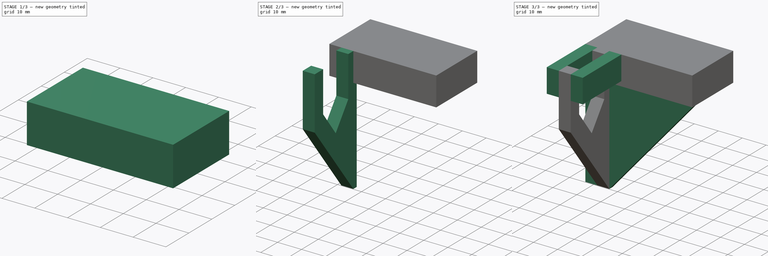
[diagram: build sequence overview — one tinted view per stage of 3, left to right]
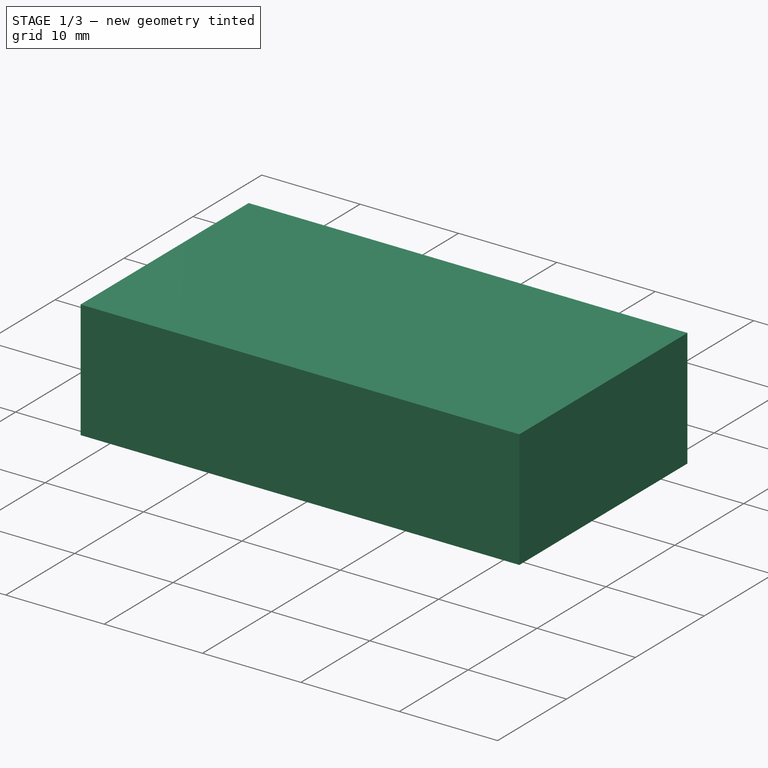
[diagram: stage 1 of 3 — iso view after this stage's code; geometry added in this stage tinted green]
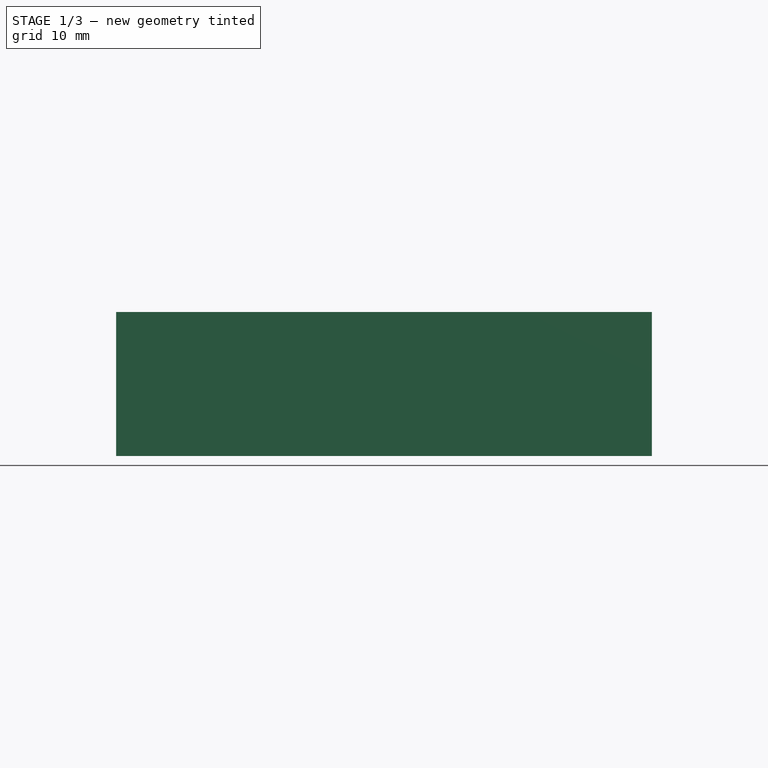
[diagram: stage 1 of 3 — front view after this stage's code; geometry added in this stage tinted green]
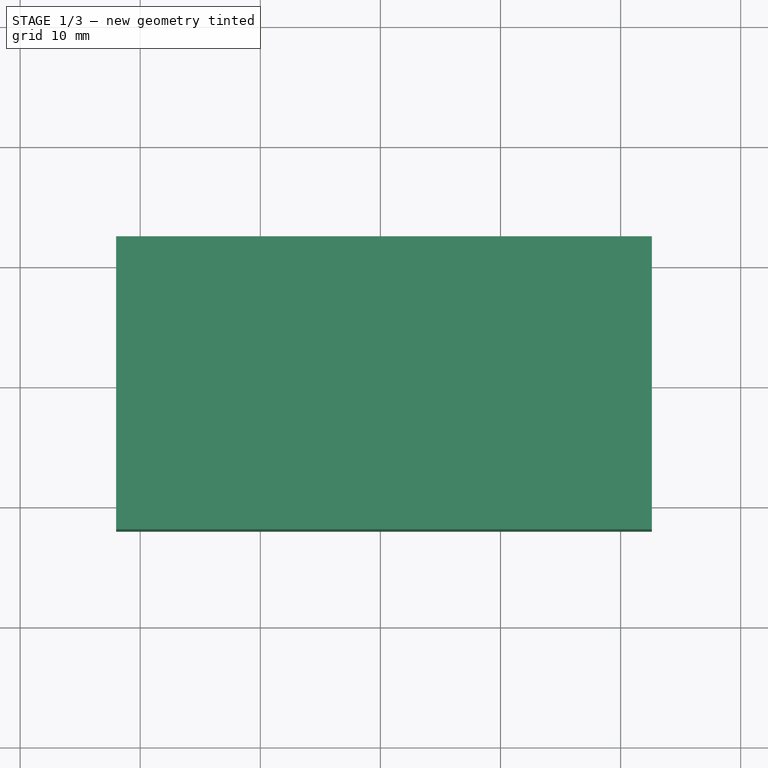
[diagram: stage 1 of 3 — top view after this stage's code; geometry added in this stage tinted green]
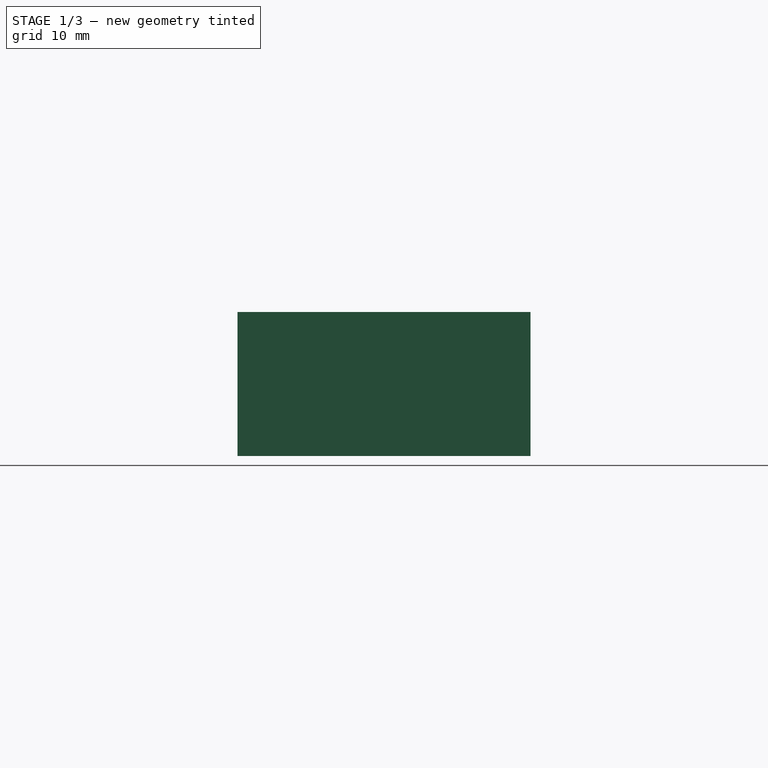
[diagram: stage 1 of 3 — right view after this stage's code; geometry added in this stage tinted green]
FCSTD DOCUMENT  (FreeCAD 1.0R39109 (Git))
Label: Cap_straight_slot
License: All rights reserved
LicenseURL: https://en.wikipedia.org/wiki/All_rights_reserved
objects: Sketcher::SketchObject×4, PartDesign::Pad×4, PartDesign::AdditiveBox×1, PartDesign::Body×1
note: 24 computed .brp shape members not serialized (recipe doc carries the construction recipe); baked Part::Feature solids carry a one-line shape summary decoded from their .brp

FEATURE [Sketcher::SketchObject] Sketch002
  ArcFitTolerance = 0
  AttachmentSupport = -> [XY_Plane]
  FullyConstrained = true
  MakeInternals = false
  MapMode = 5
  sketch-geometry (8):
    g0: LineSegment StartX=0 StartY=20.4 StartZ=0 EndX=40.6 EndY=20.4 EndZ=0
    g1: LineSegment StartX=40.6 StartY=20.4 StartZ=0 EndX=40.6 EndY=0 EndZ=0
    g2: LineSegment StartX=40.6 StartY=0 StartZ=0 EndX=0 EndY=0 EndZ=0
    g3: LineSegment StartX=0 StartY=0 StartZ=0 EndX=0 EndY=20.4 EndZ=0
    g4: LineSegment StartX=-2 StartY=22.4 StartZ=0 EndX=42.6 EndY=22.4 EndZ=0
    g5: LineSegment StartX=42.6 StartY=22.4 StartZ=0 EndX=42.6 EndY=-2 EndZ=0
    g6: LineSegment StartX=42.6 StartY=-2 StartZ=0 EndX=-2 EndY=-2 EndZ=0
    g7: LineSegment StartX=-2 StartY=-2 StartZ=0 EndX=-2 EndY=22.4 EndZ=0
  constraints (24):
    c: Coincident(g0,g1)
    c: Coincident(g1,g2)
    c: Coincident(g2,g3)
    c: Coincident(g3,g0)
    c: Horizontal(g0)
    c: Horizontal(g2)
    c: Vertical(g1)
    c: Vertical(g3)
    c: Coincident(g4,g5)
    c: Coincident(g5,g6)
    c: Coincident(g7,g4)
    c: Horizontal(g4)
    c: Horizontal(g6)
    c: Vertical(g5)
    c: Vertical(g7)
    c: DistanceX(g2) = 0
    c: DistanceY(g2) = 0
    c: DistanceY(g3,g3) = 20.4
    c: DistanceX(g0,g0) = 40.6
    c: DistanceX(g0,g4) = 2
    c: DistanceX(g4,g0) = 2
    c: DistanceY(g0,g4) = 2
    c: DistanceY(g5,g1) = 2
    c: Coincident(g6,g7)
FEATURE [PartDesign::Pad] Pad001
  Direction = (0,0,1)
  Length = 12
  Length2 = 10
  Profile = -> Sketch002
  ReferenceAxis = -> Sketch002 [N_Axis]
  Suppressed = false
  Type = 0
FEATURE [PartDesign::AdditiveBox] Box
  AttacherType = Attacher::AttachEngine3D
  AttachmentOffset = pos=(-2,-2,10) rot=(0,0,1;0rad)
  AttachmentSupport = -> [XY_Plane]
  BaseFeature = -> Pad001
  Height = 2
  Length = 44.2
  MapMode = 5
  Placement = pos=(-2,-2,10) rot=(0,0,1;0rad)
  Suppressed = false
  Width = 24.2
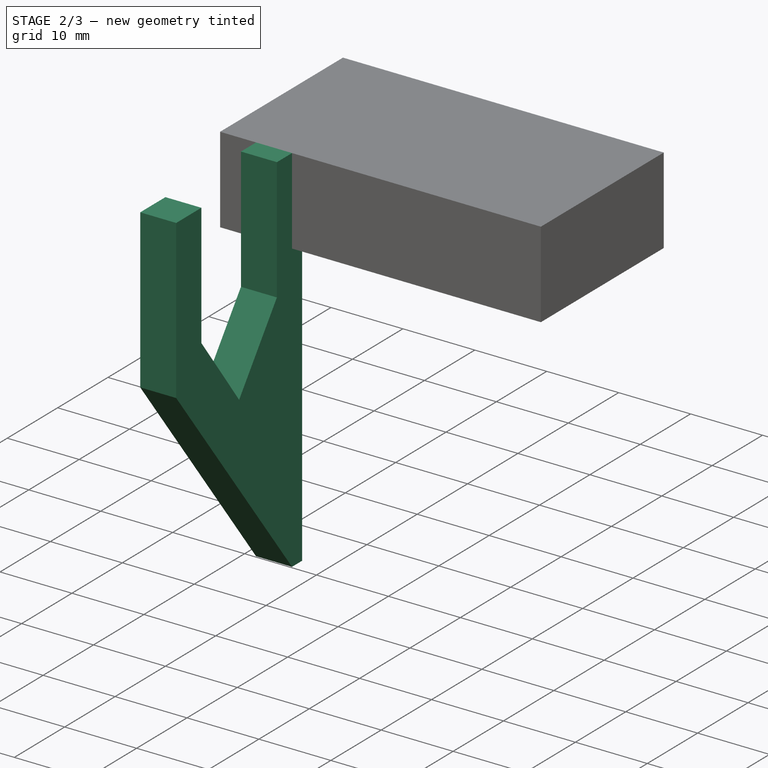
[diagram: stage 2 of 3 — iso view after this stage's code; geometry added in this stage tinted green]
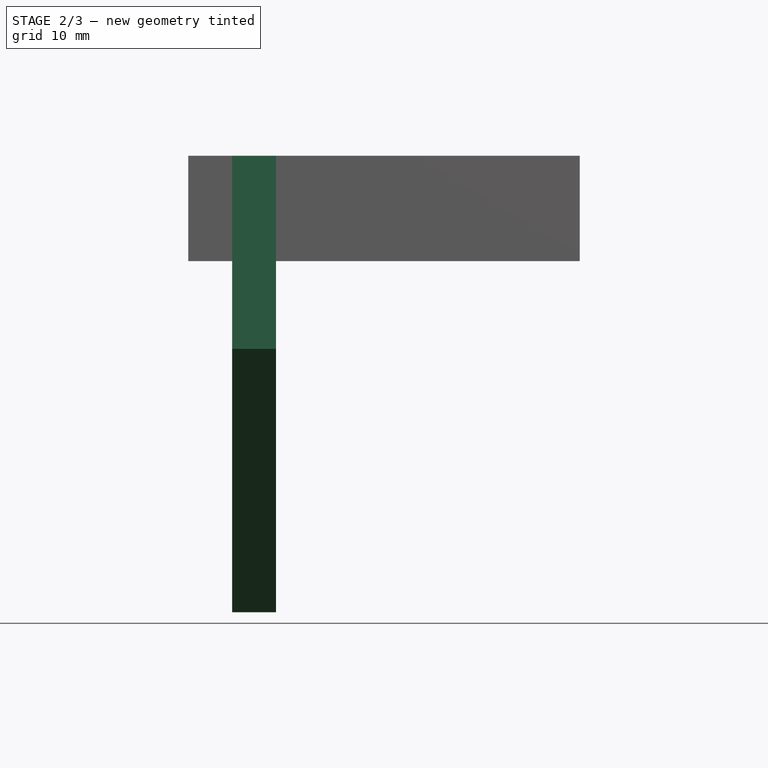
[diagram: stage 2 of 3 — front view after this stage's code; geometry added in this stage tinted green]
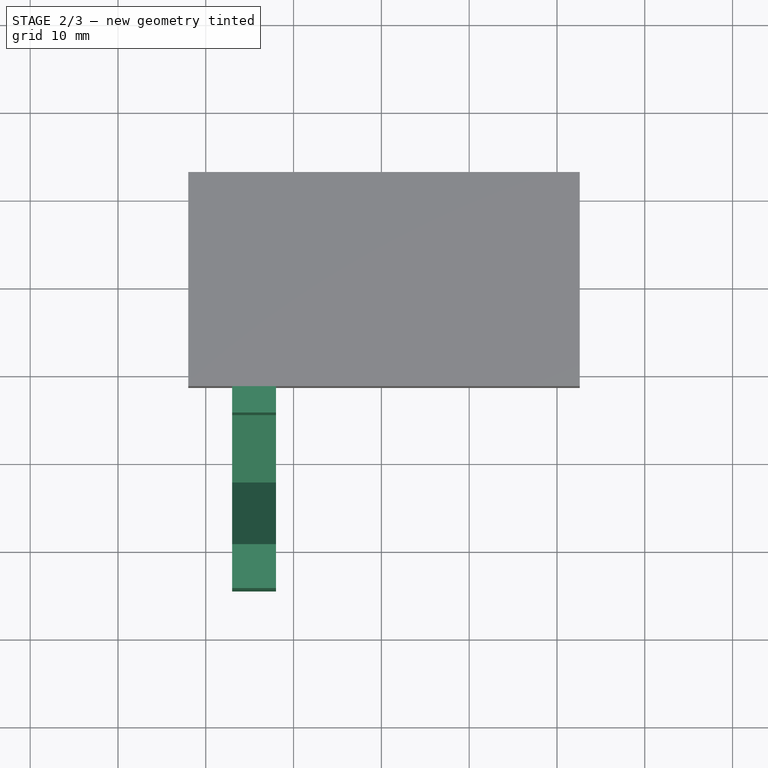
[diagram: stage 2 of 3 — top view after this stage's code; geometry added in this stage tinted green]
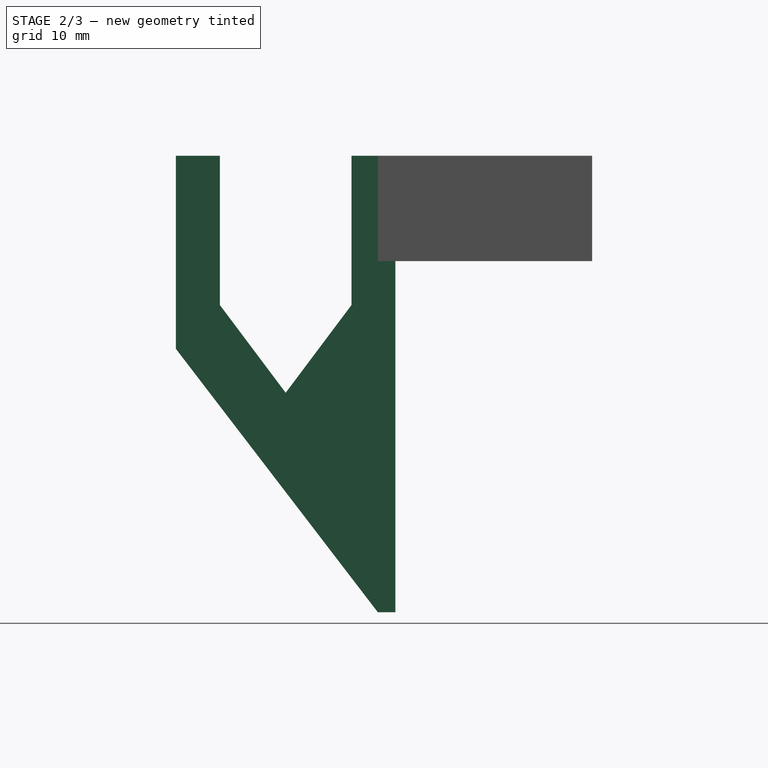
[diagram: stage 2 of 3 — right view after this stage's code; geometry added in this stage tinted green]
FEATURE [Sketcher::SketchObject] Sketch
  ArcFitTolerance = 1e-06
  AttachmentOffset = pos=(0,0,5.5) rot=(0,0,1;0rad)
  AttachmentSupport = -> [YZ_Plane]
  FullyConstrained = true
  MakeInternals = false
  MapMode = 5
  Placement = pos=(5.5,0,0) rot=(0.57735,0.57735,0.57735;2.0944rad)
  sketch-geometry (11):
    g0: LineSegment StartX=-25 StartY=-10 StartZ=0 EndX=-2 EndY=-40 EndZ=0
    g1: LineSegment StartX=-2 StartY=-40 StartZ=0 EndX=0 EndY=-40 EndZ=0
    g2: LineSegment StartX=0 StartY=-40 StartZ=0 EndX=0 EndY=-10 EndZ=0
    g3: LineSegment StartX=-25 StartY=12 StartZ=0 EndX=-25 EndY=-10 EndZ=0
    g4: LineSegment StartX=-20 StartY=-5 StartZ=0 EndX=-20 EndY=12 EndZ=0
    g5: LineSegment StartX=-20 StartY=12 StartZ=0 EndX=-25 EndY=12 EndZ=0
    g6: LineSegment StartX=-20 StartY=-5 StartZ=0 EndX=-12.5 EndY=-15 EndZ=0
    g7: LineSegment StartX=-12.5 StartY=-15 StartZ=0 EndX=-5 EndY=-5 EndZ=0
    g8: LineSegment StartX=-5 StartY=-5 StartZ=0 EndX=-5 EndY=12 EndZ=0
    g9: LineSegment StartX=-5 StartY=12 StartZ=0 EndX=0 EndY=12 EndZ=0
    g10: LineSegment StartX=0 StartY=12 StartZ=0 EndX=0 EndY=-10 EndZ=0
  constraints (33):
    c: Coincident(g0,g1)
    c: Horizontal(g1)
    c: DistanceX(g1,g1) = 2
    c: Coincident(g2,g1)
    c: Vertical(g2)
    c: DistanceY(g2,g2) = 30
    c: DistanceX(g0,g2) = 25
    c: DistanceX(g2) = 0
    c: DistanceY(g2) = -10
    c: Coincident(g4,g5)
    c: Coincident(g5,g3)
    c: Vertical(g3)
    c: Vertical(g4)
    c: Horizontal(g5)
    c: Coincident(g3,g0)
    c: DistanceY(g2,g0) = 0
    c: DistanceX(g5,g5) = 5
    c: Coincident(g4,g6)
    c: Coincident(g6,g7)
    c: Coincident(g7,g8)
    c: Vertical(g8)
    c: Coincident(g8,g9)
    c: Horizontal(g9)
    c: Coincident(g9,g10)
    c: Coincident(g10,g2)
    c: Vertical(g10)
    c: DistanceY(g-1,g9) = 12
    c: DistanceY(g4,g8) = 0
    c: DistanceX(g9,g9) = 5
    c: Equal(g6,g7)
    c: DistanceY(g7,g4) = 0
    c: DistanceY(g7,g-1) = 5
    c: DistanceY(g6,g7) = 10
FEATURE [PartDesign::Pad] Pad
  BaseFeature = -> Box
  Direction = (1,0,0)
  Length = 5
  Length2 = 10
  Midplane = true
  Placement = pos=(-2,-2,10) rot=(0,0,1;0rad)
  Profile = -> Sketch
  ReferenceAxis = -> Sketch [N_Axis]
  Suppressed = false
  Type = 0
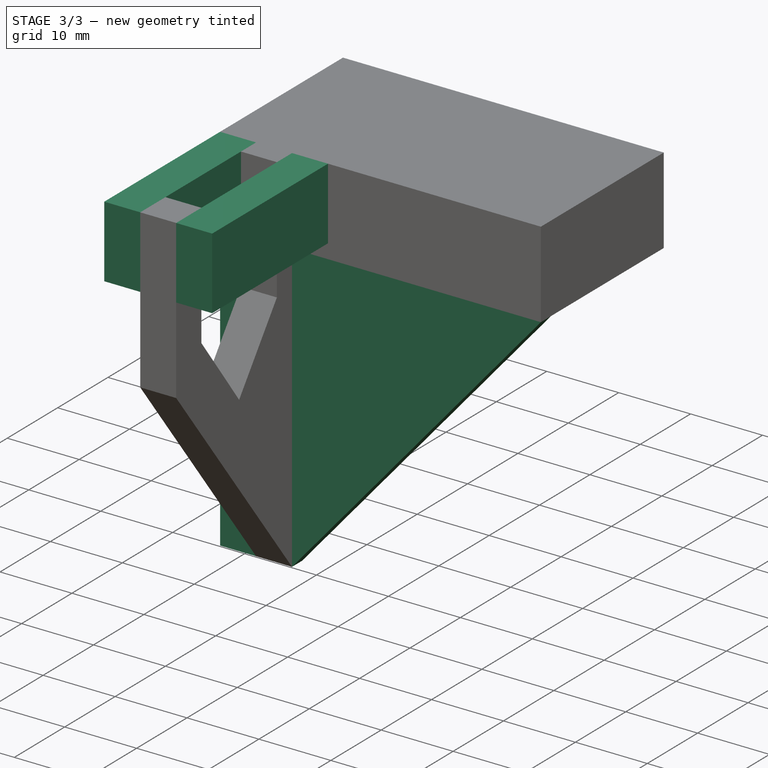
[diagram: stage 3 of 3 — iso view after this stage's code; geometry added in this stage tinted green]
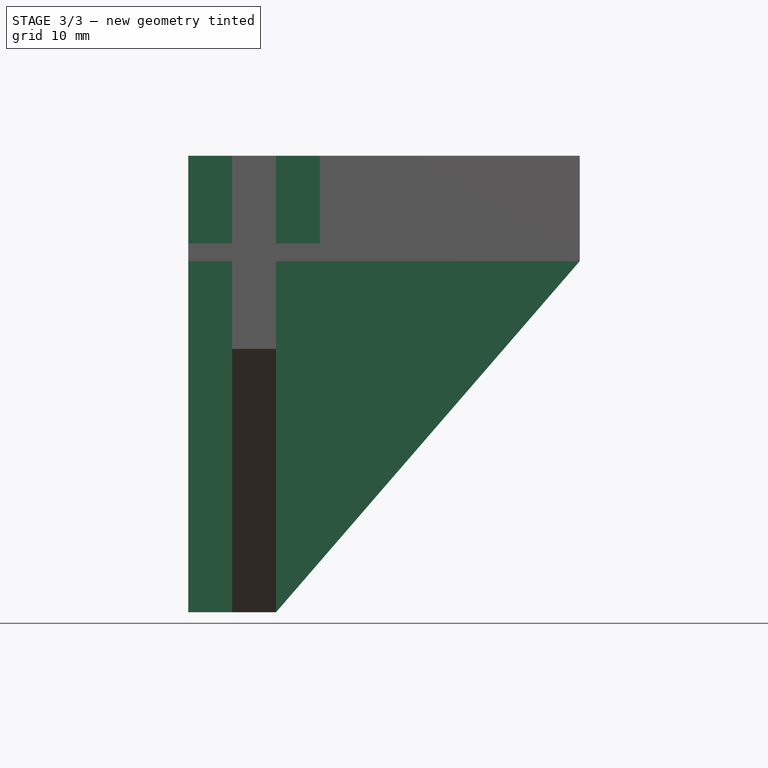
[diagram: stage 3 of 3 — front view after this stage's code; geometry added in this stage tinted green]
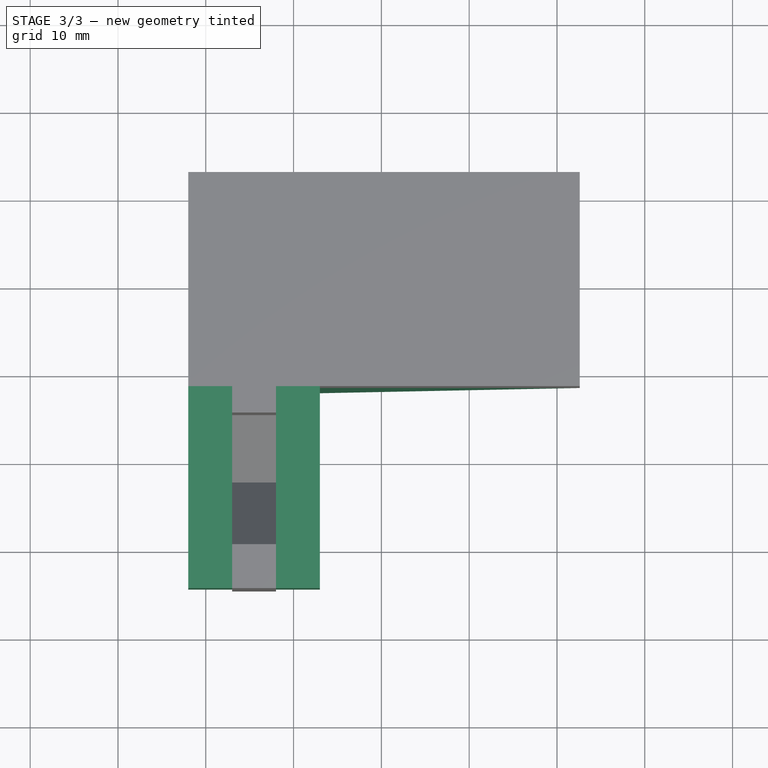
[diagram: stage 3 of 3 — top view after this stage's code; geometry added in this stage tinted green]
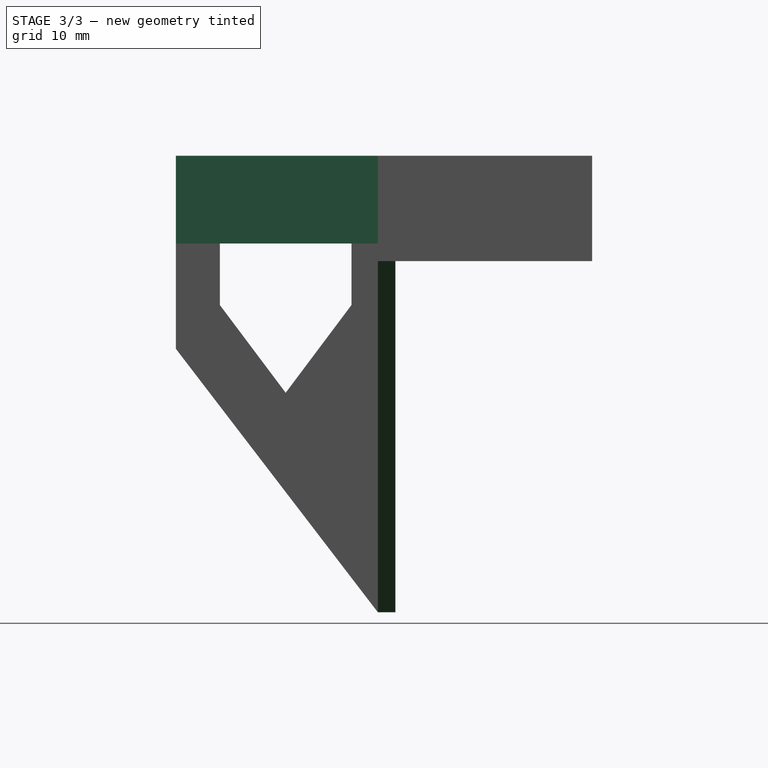
[diagram: stage 3 of 3 — right view after this stage's code; geometry added in this stage tinted green]
FEATURE [Sketcher::SketchObject] Sketch003
  ArcFitTolerance = 1e-06
  AttachmentOffset = pos=(0,0,12) rot=(0,0,1;0rad)
  AttachmentSupport = -> [XY_Plane]
  FullyConstrained = true
  MakeInternals = false
  MapMode = 5
  Placement = pos=(0,0,12) rot=(0,0,1;0rad)
  sketch-geometry (10):
    g0: LineSegment StartX=3 StartY=-5 StartZ=0 EndX=3 EndY=-20 EndZ=0
    g1: LineSegment StartX=8 StartY=-20 StartZ=0 EndX=8 EndY=-5 EndZ=0
    g2: ArcOfCircle CenterX=5.5 CenterY=-20 CenterZ=0 NormalX=0 NormalY=0 NormalZ=1 AngleXU=0 Radius=2.5 StartAngle=3.14159 EndAngle=6.28319
    g3: ArcOfCircle CenterX=5.5 CenterY=-5 CenterZ=0 NormalX=0 NormalY=0 NormalZ=1 AngleXU=0 Radius=2.5 StartAngle=1e-16 EndAngle=3.14159
    g4: LineSegment StartX=-2 StartY=0 StartZ=0 EndX=-2 EndY=-25 EndZ=0
    g5: LineSegment StartX=13 StartY=-25 StartZ=0 EndX=13 EndY=0 EndZ=0
    g6: LineSegment StartX=-2 StartY=0 StartZ=0 EndX=13 EndY=0 EndZ=0
    g7: LineSegment StartX=-2 StartY=-25 StartZ=0 EndX=13 EndY=-25 EndZ=0
    g8: LineSegment [constr] StartX=5.5 StartY=-5 StartZ=0 EndX=-2 EndY=0 EndZ=0
    g9: LineSegment [constr] StartX=5.5 StartY=-5 StartZ=0 EndX=13 EndY=0 EndZ=0
  constraints (26):
    c: Vertical(g0)
    c: Vertical(g1)
    c: Tangent(g2,g0) = -1.5708
    c: Tangent(g2,g1) = -1.5708
    c: Radius(g2) = 2.5
    c: DistanceY(g1,g1) = 15
    c: Tangent(g3,g0) = -1.5708
    c: Tangent(g3,g1) = -1.5708
    c: Vertical(g4)
    c: Vertical(g5)
    c: Coincident(g6,g4)
    c: Coincident(g6,g5)
    c: Horizontal(g6)
    c: DistanceX(g3) = 5.5
    c: DistanceY(g3) = -5
    c: Coincident(g7,g4)
    c: Coincident(g7,g5)
    c: Horizontal(g7)
    c: Coincident(g8,g3)
    c: Coincident(g8,g4)
    c: Coincident(g9,g3)
    c: Coincident(g9,g5)
    c: Equal(g8,g9)
    c: DistanceX(g7,g7) = 15
    c: DistanceY(g5,g2) = 5
    c: DistanceY(g5,g-1) = 0
FEATURE [PartDesign::Pad] Pad002
  BaseFeature = -> Pad
  Direction = (0,0,1)
  Length = 10
  Length2 = 10
  Placement = pos=(-2,-2,10) rot=(0,0,1;0rad)
  Profile = -> Sketch003
  ReferenceAxis = -> Sketch003 [N_Axis]
  Reversed = true
  Suppressed = false
  Type = 0
FEATURE [Sketcher::SketchObject] Sketch004
  ArcFitTolerance = 1e-06
  AttachmentSupport = -> [XZ_Plane]
  FullyConstrained = true
  MakeInternals = false
  MapMode = 5
  Placement = pos=(0,0,0) rot=(1,0,0;1.5708rad)
  sketch-geometry (4):
    g0: LineSegment StartX=-2 StartY=0 StartZ=0 EndX=-2 EndY=-40 EndZ=0
    g1: LineSegment StartX=-2 StartY=-40 StartZ=0 EndX=8 EndY=-40 EndZ=0
    g2: LineSegment StartX=42.6 StartY=0 StartZ=0 EndX=-2 EndY=0 EndZ=0
    g3: LineSegment StartX=8 StartY=-40 StartZ=0 EndX=42.6 EndY=0 EndZ=0
  constraints (12):
    c: Coincident(g0,g1)
    c: Coincident(g2,g0)
    c: Vertical(g0)
    c: Horizontal(g1)
    c: Horizontal(g2)
    c: Coincident(g3,g1)
    c: DistanceX(g0) = -2
    c: DistanceY(g0) = 0
    c: DistanceX(g-1,g2) = 42.6
    c: DistanceY(g0,g-1) = 40
    c: Coincident(g2,g3)
    c: DistanceX(g0,g1) = 10
FEATURE [PartDesign::Pad] Pad003
  BaseFeature = -> Pad002
  Direction = (0,-1,2e-16)
  Length = 2
  Length2 = 10
  Placement = pos=(-2,-2,10) rot=(0,0,1;0rad)
  Profile = -> Sketch004
  ReferenceAxis = -> Sketch004 [N_Axis]
  Suppressed = false
  Type = 0
FEATURE [PartDesign::Body] Body
  AllowCompound = false
  Group = -> [Pad001,Sketch002,Box,Sketch,Pad,Sketch003,Pad002,Sketch004,Pad003]
  Origin = -> Origin
  Tip = -> Pad003
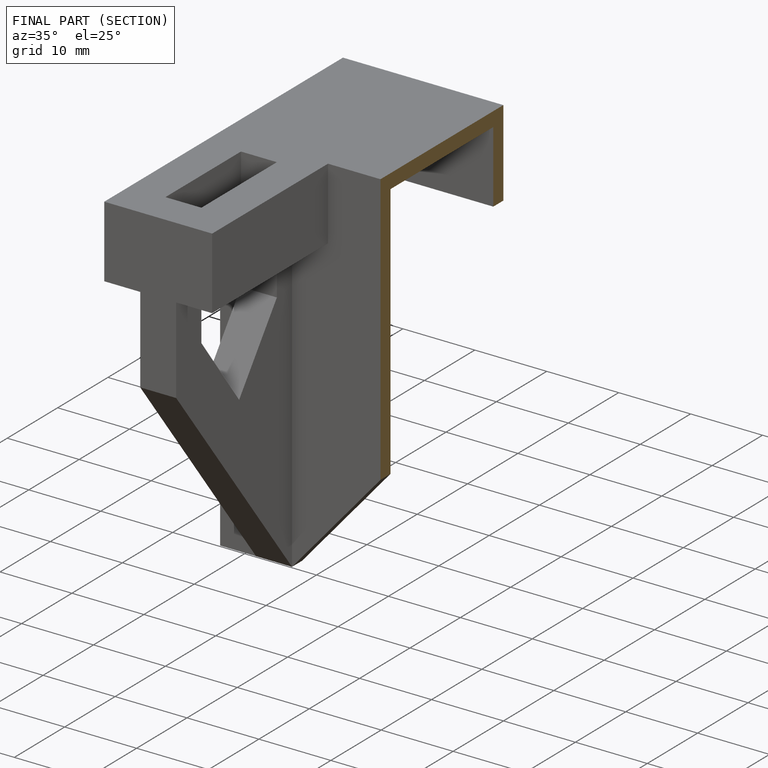
[diagram: finished part — half-section view (interior)]
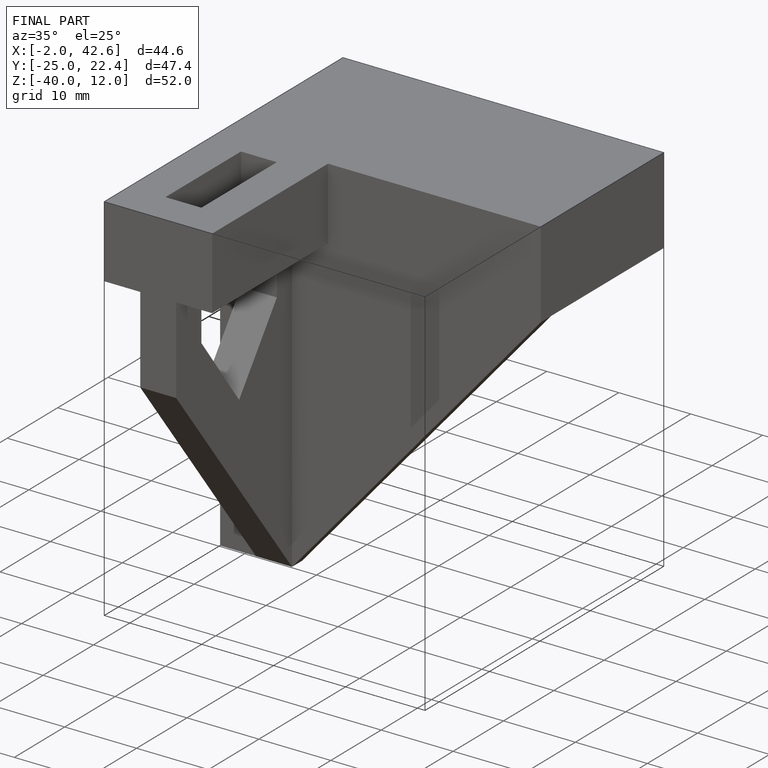
[diagram: finished part — iso view with bounding-box wireframe]
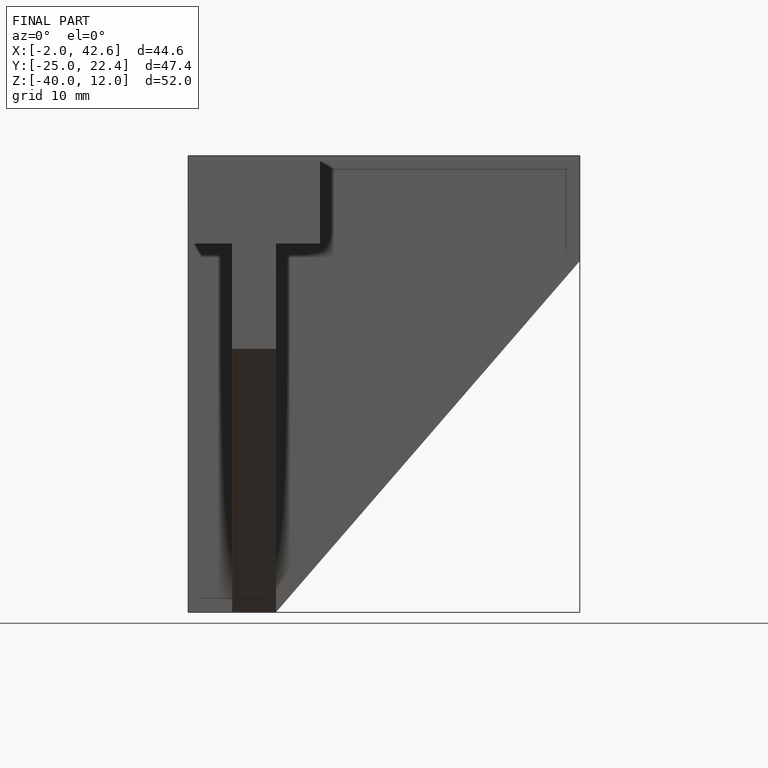
[diagram: finished part — front view with bounding-box wireframe]
